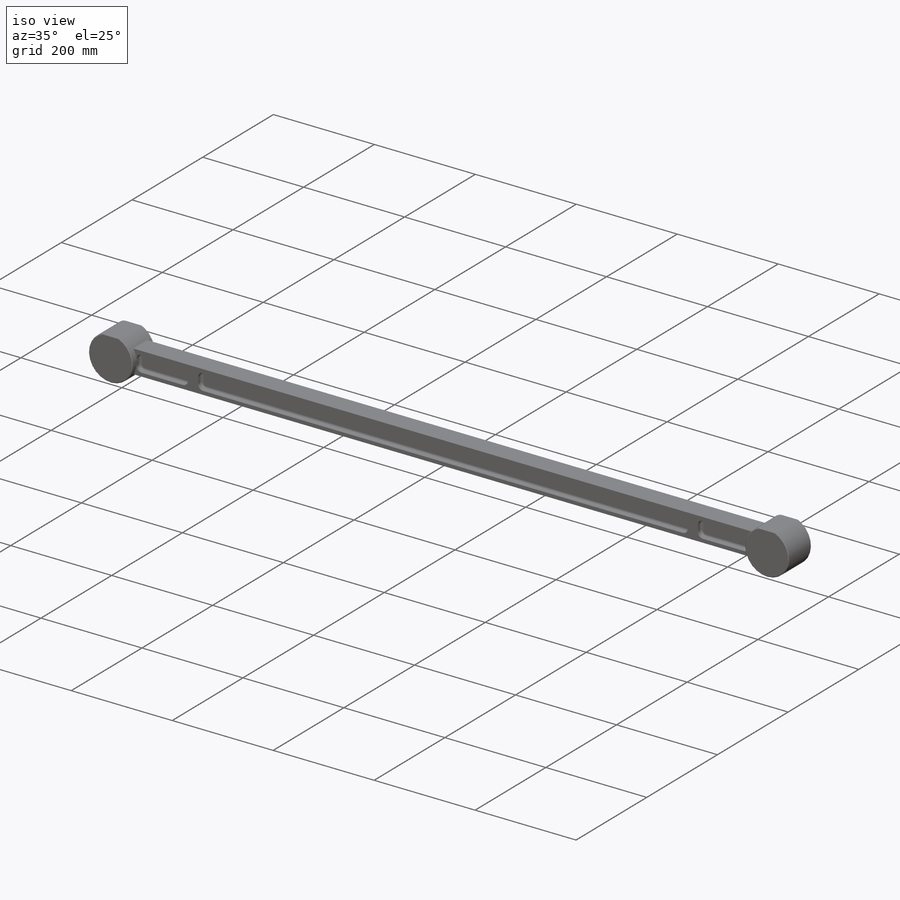
[diagram: iso view]
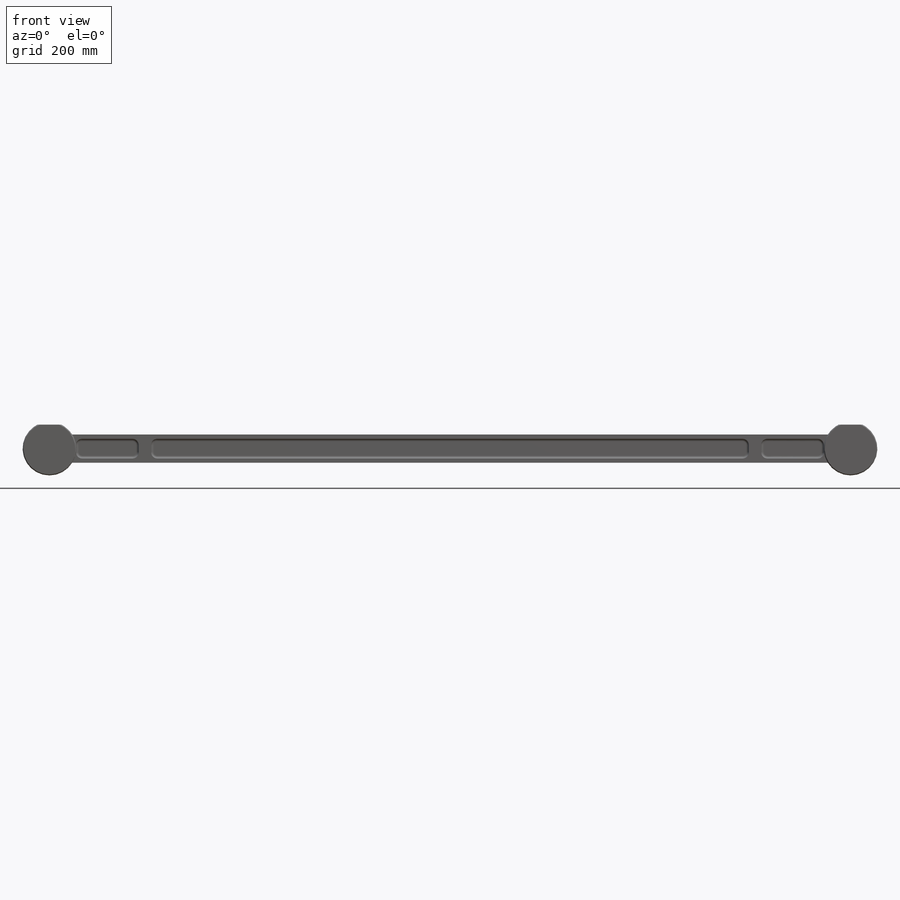
[diagram: front view]
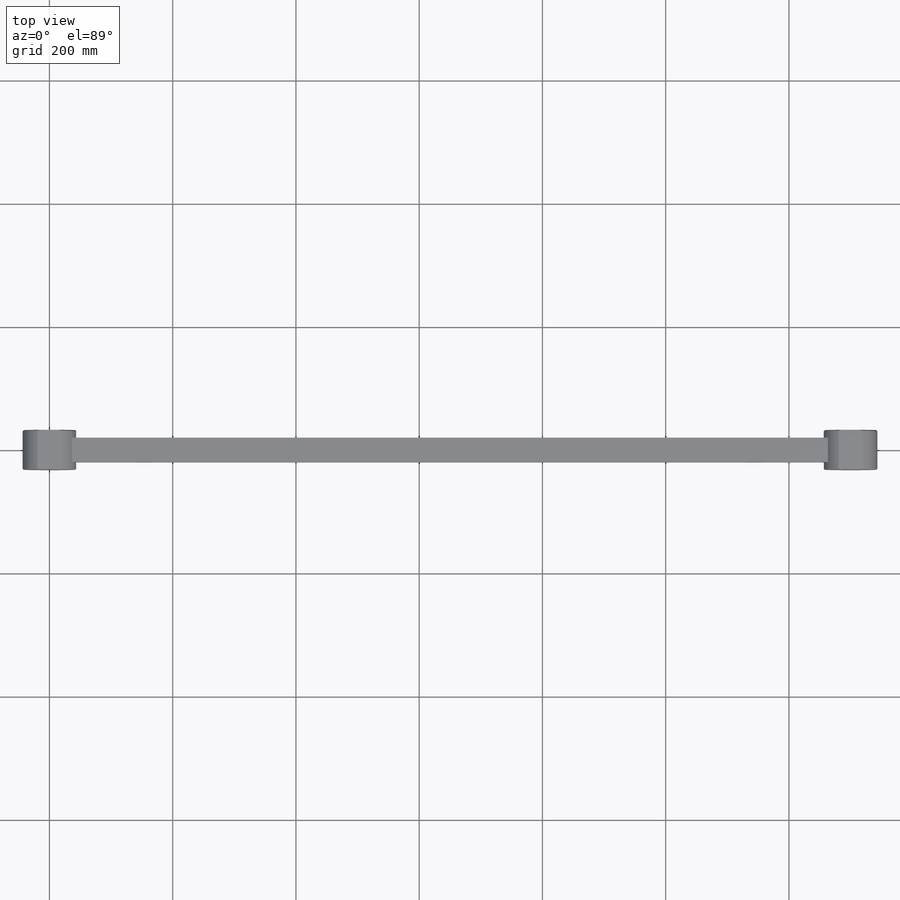
[diagram: top view]
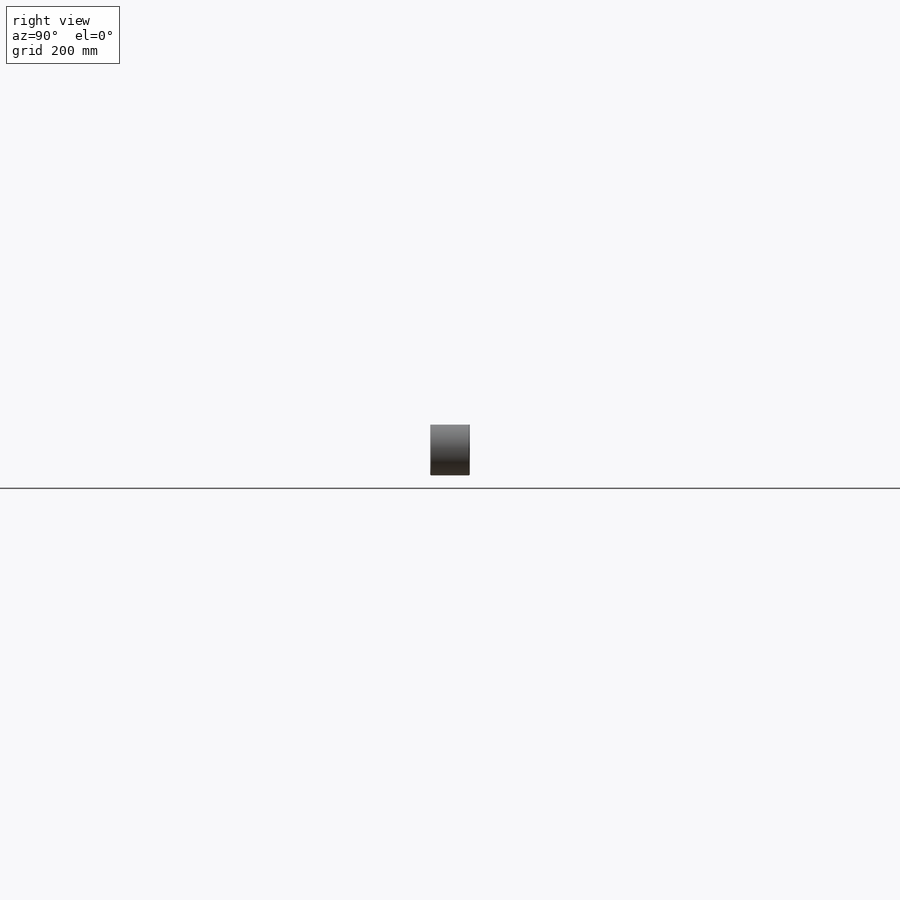
[diagram: right view]
SOLIDWORKS PART (.sldprt)
format: sldprt  version: not decoded by parser v0  size: 657,408 bytes
history: native  units: mm
features: sketch x6, extrude x2, cut_extrude x2, material x1, chamfer x1, fillet x1 (+13 scaffold rows collapsed)
feature tree (26):
  scaffold x13  (default folders/planes/origin — collapsed)
  material  "Material <not specified>"
  sketch  "Sketch1"
  sketch  "Sketch2"
  sketch  "Sketch3"  dims[D1=86.995mm D2=86.995mm]
  extrude  "Extrude1"  Depth=19.812mm
  sketch  "Sketch4"
  cut_extrude  "Cut-Extrude1"  Depth=9.652mm
  sketch  "Sketch5"  dims[D1=0.0mm D2=0.0mm D3=0.0mm]
  cut_extrude  "Cut-Extrude2"  Depth=9.652mm
  sketch  "Sketch6"  dims[D1=0.0mm]
  extrude  "Extrude2"  Depth=12.192mm
  chamfer  "Chamfer1"  Distance=1.524mm Angle=45deg
  fillet  "Fillet1"  Radius=4.318mm
decode coverage: 9 of 12 modeling features carry decoded parameters
note: suppression state not decoded; provenance and decode notes live in map.json
